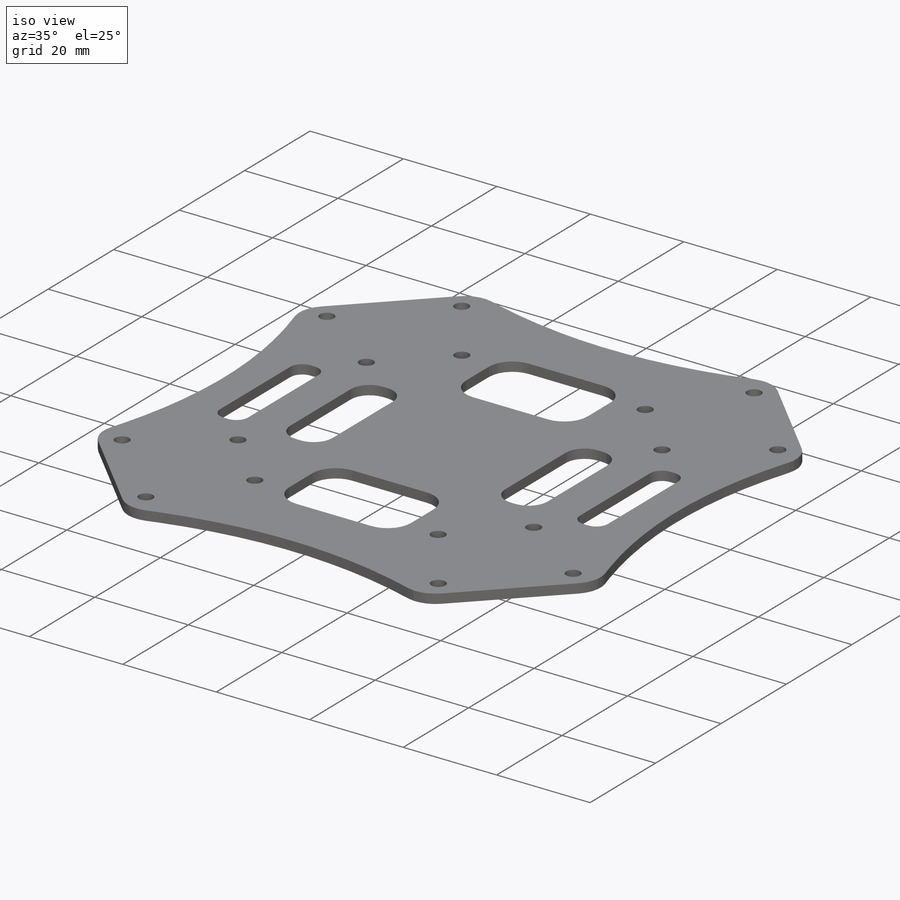
[diagram: iso view]
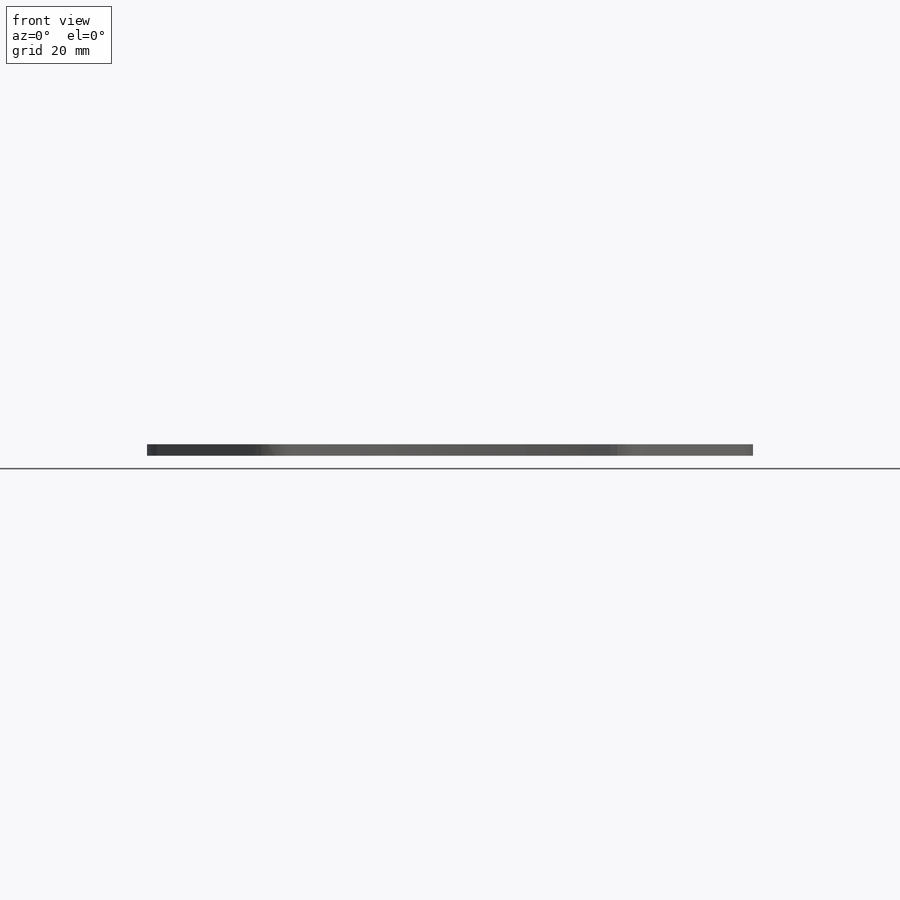
[diagram: front view]
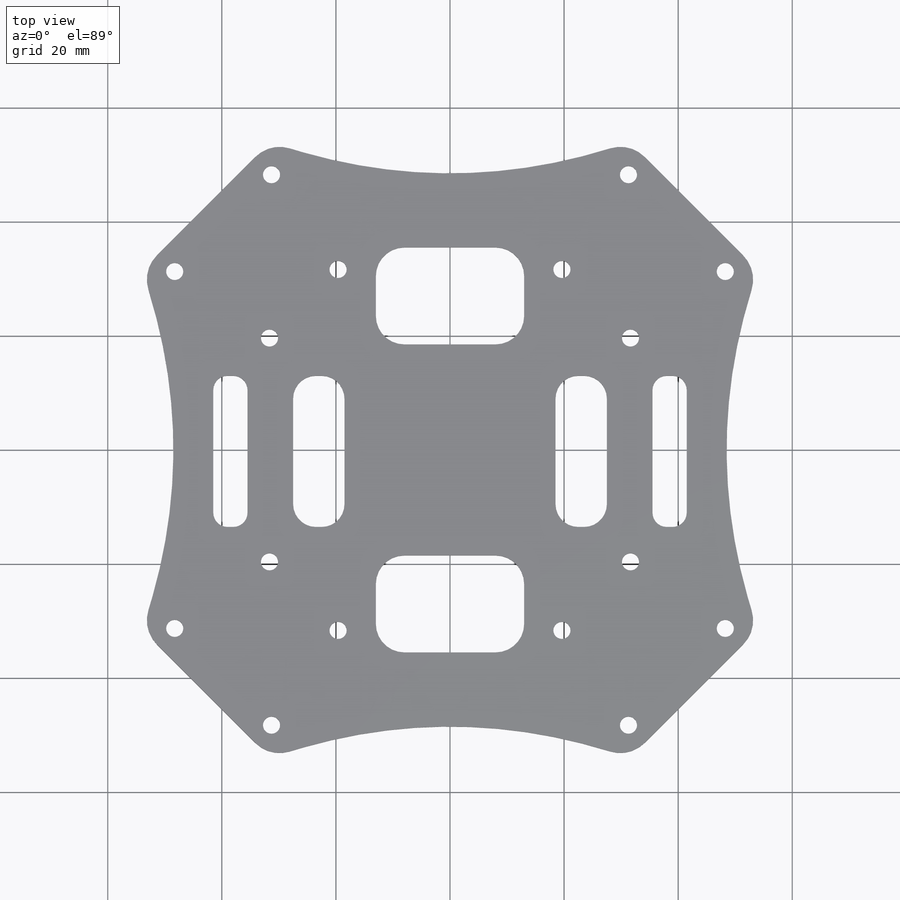
[diagram: top view]
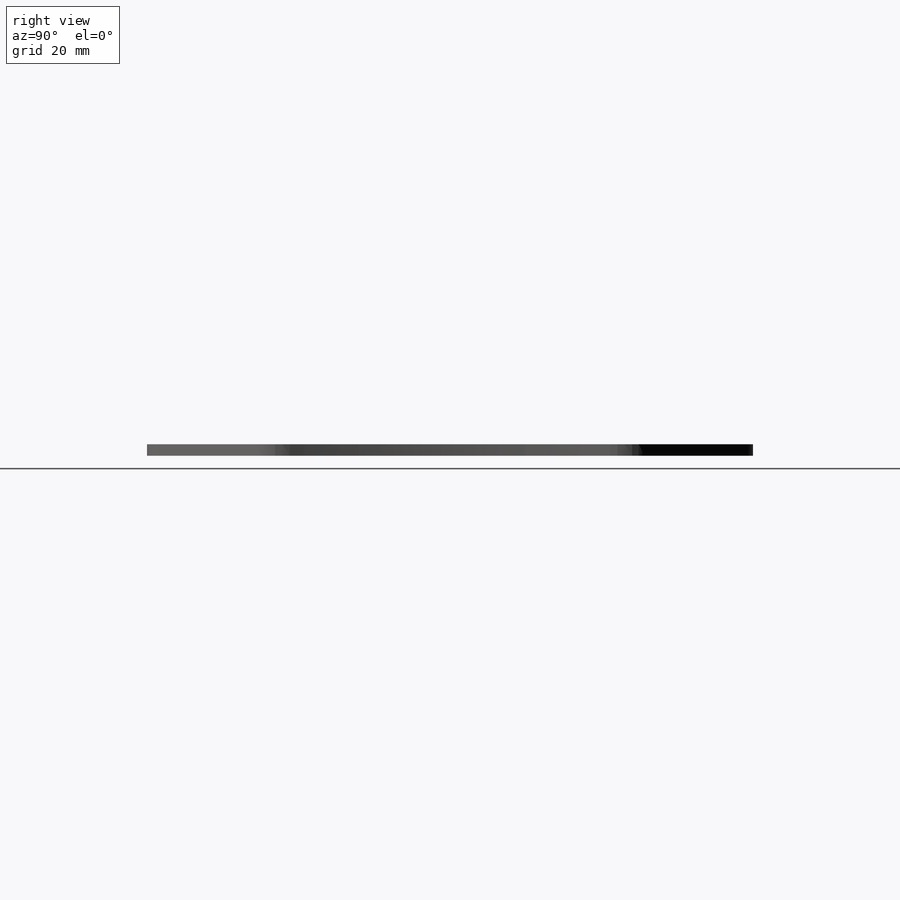
[diagram: right view]
SOLIDWORKS PART (.sldprt)
format: sldprt  version: not decoded by parser v0  size: 416,768 bytes
history: native  units: mm
features: plane x3, sketch x2, material x1, extrude x1, fillet x1, cut_extrude x1 (+9 scaffold rows collapsed)
feature tree (18):
  scaffold x9  (default folders/planes/origin — collapsed)
  material  "Материал <не указан>"
  plane  "Спереди"
  plane  "Сверху"
  plane  "Справа"
  sketch  "Эскиз2"  dims[c1.D13=5.0mm c1.D14=2.5mm c1.D15=4.0mm c1.D1=63.0mm c1.D2=63.0mm c1.D3=63.0mm c1.D4=63.0mm c1.D5=108.0mm c1.D6=108.0mm c1.D7=~31.819805mm c1.D8=~31.819805mm c1.D9=~31.819805mm c1.D10=~31.819805mm c1.D11=97.0mm c1.D12=97.0mm c2.D13=17.0mm c2.D14=6.0mm c2.D15=9.0mm]
  extrude  "Бобышка-Вытянуть1"  Depth=2mm
  fillet  "Скругление1"  Radius=6mm
  sketch  "Эскиз3"  dims[c1.D1=3.0mm c1.D2=3.0mm c1.D5=~2.150926mm c1.D6=~1.62347mm c2.D1=10.0mm c2.D2=8.5mm c2.D3=8.5mm c2.D4=17.0mm c2.D5=11.5mm c2.D6=11.5mm c2.D7=20.5mm c2.D8=5.0mm c2.D9=5.0mm c3.D1=~120.91526mm c3.D2=~120.91526mm c3.D3=97.0mm c3.D4=97.0mm c3.D5=36.0mm c3.D6=24.0mm c3.D7=~4.45763mm c3.D8=20.0mm c3.D9=17.0mm c3.D10=~28.637825mm c3.D11=~28.637825mm c3.D12=36.0mm c4.D5=36.25mm c4.D7=112.0mm c4.D8=19.75mm c5.D7=20.0mm c5.D8=12.0mm c5.D9=12.0mm c5.D10=~8.485281mm c6.D10=90.0deg c7.D10=~120.91526mm c8.D10=90.0deg c9.D10=~120.91526mm c10.D10=270.0deg c11.D10=8.5mm c11.D11=8.5mm]
  cut_extrude  "Вырез-Вытянуть1"  Depth=10mm
decode coverage: 5 of 5 modeling features carry decoded parameters
note: ~ marks probable driven/reference dimensions
note: suppression state not decoded; provenance and decode notes live in map.json
